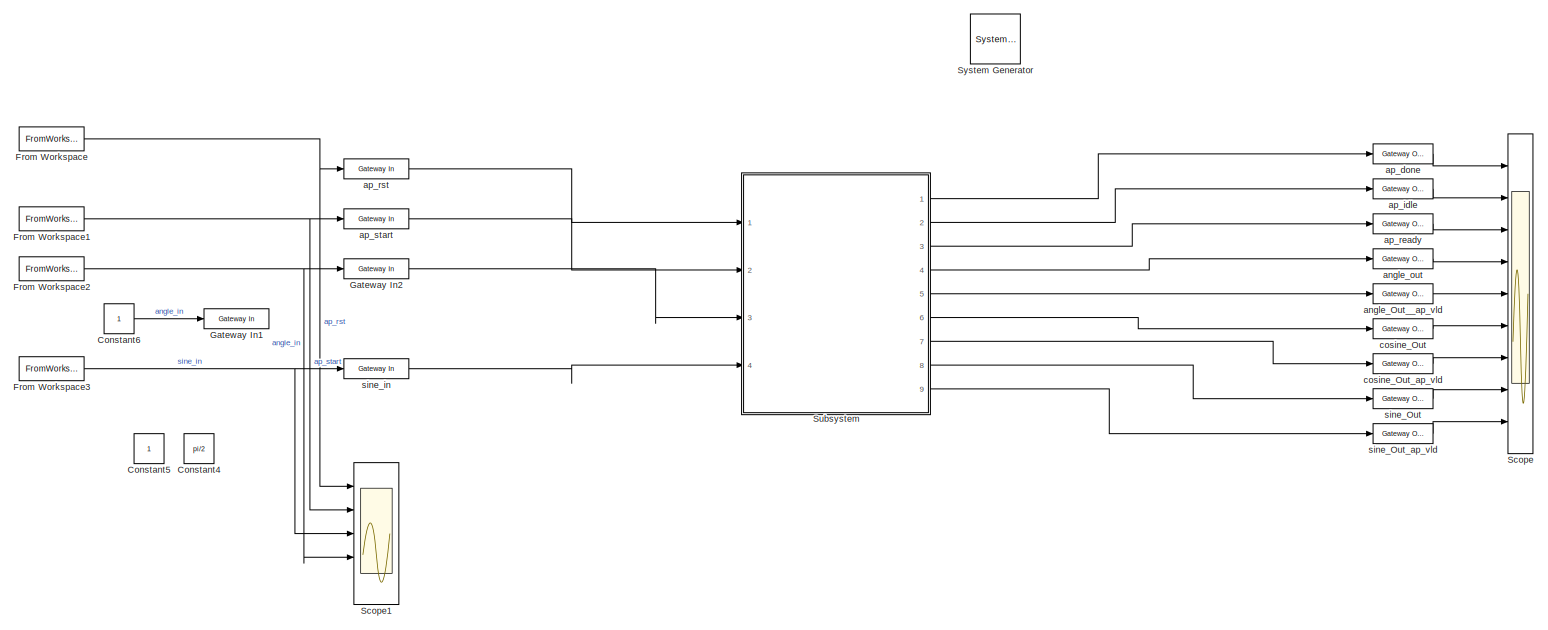
[diagram: root canvas - part 1/2, full width, top band]
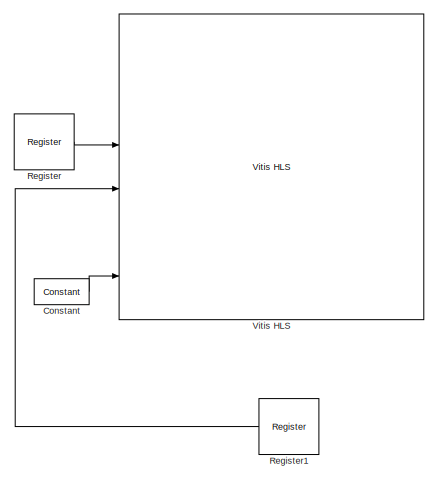
[diagram: root canvas - part 2/2, bottom left region]
MODEL slx_084b6233c54a
KIND model
CONFIG AbsTol = auto
CONFIG EnableMultiTasking = off
CONFIG FixedStep = auto
CONFIG MaxStep = auto
CONFIG MinStep = auto
CONFIG RelTol = 1e-3
CONFIG SampleTimeConstraint = Unconstrained
CONFIG SolverName = VariableStepAuto
CONFIG StartTime = 0.0
CONFIG StopTime = sim_length
BLOCK [Reference]  System Generator  REF=xbsIndex_r4/ System Generator
  AttributesFormatString = System\nGenerator
  Ports = []
  SourceBlock = xbsIndex_r4/ System Generator
  SourceType = Xilinx System Generator Block
  Tag = genX
  UserDataPersistent = on
BLOCK [Reference] Constant  REF=hdlBasic/Constant
  Commented = on
  Ports = [0, 1]
  SourceBlock = hdlBasic/Constant
  SourceType = Constant Block Block
BLOCK [Constant] Constant4
  Value = pi/2
BLOCK [Constant] Constant5
BLOCK [Constant] Constant6
  Commented = on
BLOCK [FromWorkspace] From Workspace
  VariableName = ap_rst
BLOCK [FromWorkspace] From Workspace1
  VariableName = ap_start
BLOCK [FromWorkspace] From Workspace2
  OutputAfterFinalValue = Holding final value
  SampleTime = -1
  VariableName = angle_in
BLOCK [FromWorkspace] From Workspace3
  VariableName = sine_in
BLOCK [Reference] Gateway In1  REF=hdlBasic/Gateway In
  Commented = on
  Ports = [1, 1]
  SourceBlock = hdlBasic/Gateway In
  SourceType = Gateway In Block
BLOCK [Reference] Gateway In2  REF=hdlBasic/Gateway In
  Ports = [1, 1]
  SourceBlock = hdlBasic/Gateway In
  SourceType = Gateway In Block
BLOCK [Reference] Register  REF=hdlBasic/Register
  Commented = on
  Ports = [2, 1]
  SourceBlock = hdlBasic/Register
  SourceType = Register Block
BLOCK [Reference] Register1  REF=hdlBasic/Register
  Commented = on
  Ports = [1, 1]
  SourceBlock = hdlBasic/Register
  SourceType = Register Block
BLOCK [Scope] Scope
  Floating = off
  NumInputPorts = 9
  Ports = [9]
  ScopeSpecificationString = Simulink.scopes.TimeScopeBlockCfg('CurrentConfiguration', extmgr.ConfigurationSet(extmgr.Configuration('Core','General UI',true),extmgr.Configuration('Core','Source UI',true),extmgr.Configuration('Sources','WiredSimulink',true,'DataLoggingVariableName','ScopeData1'),extmgr.Configuration('Visuals','Time Domain',true,'SerializedDisplays',{struct('MinYLimReal','-0.125','MaxYLimReal','1.125','YLabelRe...<+7292ch>
BLOCK [Scope] Scope1
  Floating = off
  NumInputPorts = 5
  Ports = [5]
  ScopeSpecificationString = Simulink.scopes.TimeScopeBlockCfg('CurrentConfiguration', extmgr.ConfigurationSet(extmgr.Configuration('Core','General UI',true),extmgr.Configuration('Core','Source UI',true),extmgr.Configuration('Sources','WiredSimulink',true),extmgr.Configuration('Visuals','Time Domain',true,'PlotType','Stairs','SerializedDisplays',{struct('MinYLimReal','-0.5','MaxYLimReal','4.5','YLabelReal','','MinYLimMag','0....<+5178ch>
BLOCK [SubSystem] Subsystem
  Ports = [4, 9]
  ReferencedSubsystem = ROT
  RequestExecContextInheritance = off
BLOCK [Reference] Vitis HLS  REF=hdlBasic/Vitis HLS
  Commented = on
  Ports = [6, 9]
  SourceBlock = hdlBasic/Vitis HLS
  SourceType = Xilinx High Level Synthesis Block
BLOCK [Reference] angle_Out__ap_vld  REF=hdlBasic/Gateway Out
  Ports = [1, 1]
  SourceBlock = hdlBasic/Gateway Out
  SourceType = Gateway Out Block
BLOCK [Reference] angle_out  REF=hdlBasic/Gateway Out
  Ports = [1, 1]
  SourceBlock = hdlBasic/Gateway Out
  SourceType = Gateway Out Block
BLOCK [Reference] ap_done  REF=hdlBasic/Gateway Out
  Ports = [1, 1]
  SourceBlock = hdlBasic/Gateway Out
  SourceType = Gateway Out Block
BLOCK [Reference] ap_idle  REF=hdlBasic/Gateway Out
  Ports = [1, 1]
  SourceBlock = hdlBasic/Gateway Out
  SourceType = Gateway Out Block
BLOCK [Reference] ap_ready  REF=hdlBasic/Gateway Out
  Ports = [1, 1]
  SourceBlock = hdlBasic/Gateway Out
  SourceType = Gateway Out Block
BLOCK [Reference] ap_rst  REF=hdlBasic/Gateway In
  Ports = [1, 1]
  SourceBlock = hdlBasic/Gateway In
  SourceType = Gateway In Block
BLOCK [Reference] ap_start  REF=hdlBasic/Gateway In
  Ports = [1, 1]
  SourceBlock = hdlBasic/Gateway In
  SourceType = Gateway In Block
BLOCK [Reference] cosine_Out  REF=hdlBasic/Gateway Out
  Ports = [1, 1]
  SourceBlock = hdlBasic/Gateway Out
  SourceType = Gateway Out Block
BLOCK [Reference] cosine_Out_ap_vld  REF=hdlBasic/Gateway Out
  Ports = [1, 1]
  SourceBlock = hdlBasic/Gateway Out
  SourceType = Gateway Out Block
BLOCK [Reference] sine_Out  REF=hdlBasic/Gateway Out
  Ports = [1, 1]
  SourceBlock = hdlBasic/Gateway Out
  SourceType = Gateway Out Block
BLOCK [Reference] sine_Out_ap_vld  REF=hdlBasic/Gateway Out
  Ports = [1, 1]
  SourceBlock = hdlBasic/Gateway Out
  SourceType = Gateway Out Block
BLOCK [Reference] sine_in  REF=hdlBasic/Gateway In
  Ports = [1, 1]
  SourceBlock = hdlBasic/Gateway In
  SourceType = Gateway In Block
LINE Constant6:1 -> Gateway In1:1
LINE Constant:1 -> Vitis HLS:6
NET From Workspace1:1 -> Scope1:2, ap_start:1
NET From Workspace2:1 -> Gateway In2:1, Scope1:4
NET From Workspace3:1 -> Scope1:3, sine_in:1
NET From Workspace:1 -> Scope1:1, ap_rst:1
LINE Gateway In2:1 -> Subsystem:3
LINE Register1:1 -> Vitis HLS:4
LINE Register:1 -> Vitis HLS:3
LINE Subsystem:1 -> ap_done:1
LINE Subsystem:2 -> ap_idle:1
LINE Subsystem:3 -> ap_ready:1
LINE Subsystem:4 -> angle_out:1
LINE Subsystem:5 -> angle_Out__ap_vld:1
LINE Subsystem:6 -> cosine_Out:1
LINE Subsystem:7 -> cosine_Out_ap_vld:1
LINE Subsystem:8 -> sine_Out:1
LINE Subsystem:9 -> sine_Out_ap_vld:1
LINE angle_Out__ap_vld:1 -> Scope:5
LINE angle_out:1 -> Scope:4
LINE ap_done:1 -> Scope:1
LINE ap_idle:1 -> Scope:2
LINE ap_ready:1 -> Scope:3
LINE ap_rst:1 -> Subsystem:1
LINE ap_start:1 -> Subsystem:2
LINE cosine_Out:1 -> Scope:6
LINE cosine_Out_ap_vld:1 -> Scope:7
LINE sine_Out:1 -> Scope:8
LINE sine_Out_ap_vld:1 -> Scope:9
LINE sine_in:1 -> Subsystem:4
note: NET lines group one-source signal fan-out (src -> all destinations, sorted); 1:1 wires keep LINE
